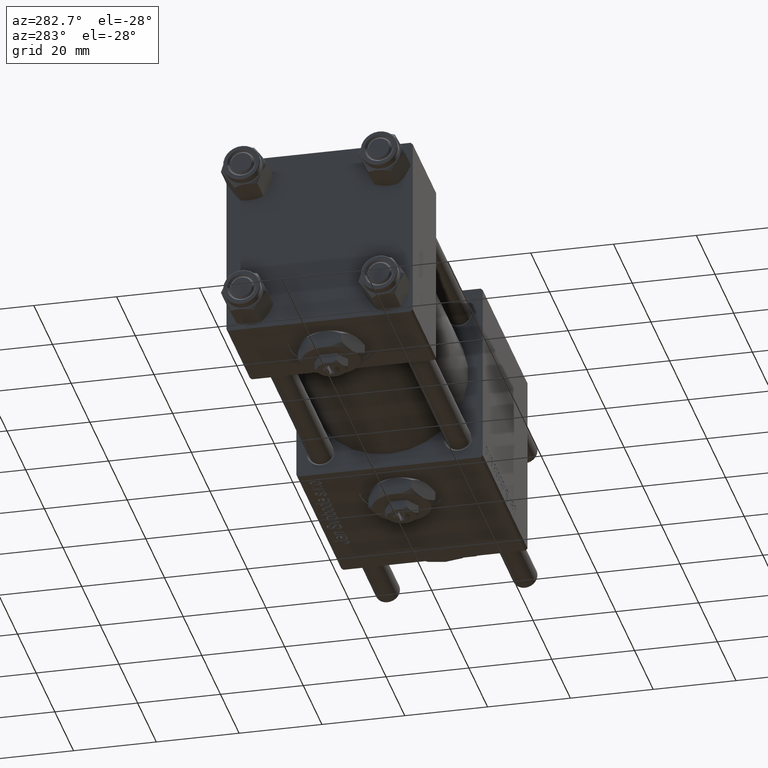
[diagram: clean part render]
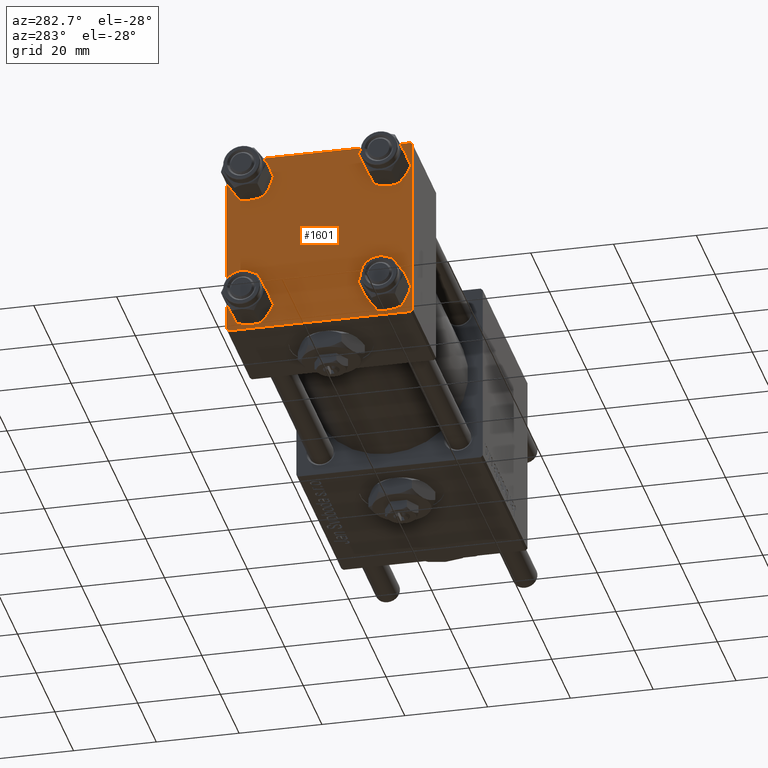
[diagram: same view with one face highlighted and labeled with its STEP entity id]
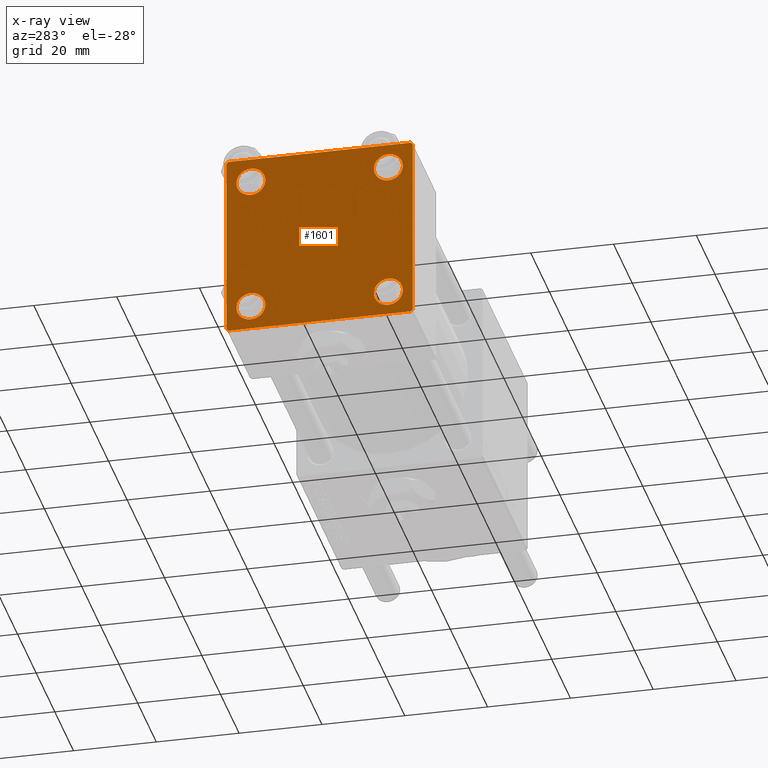
[diagram: x-ray of the same camera — body ghosted, the highlighted face saturated]
A machine part, auxiliary view. The second image highlights one B-rep face of the part: STEP entity #1601.
The next image is the same camera in x-ray: the body ghosted, the highlighted face saturated — about 0% of this face is hidden behind the body in this view.
In plain terms, the highlighted planar face has unit normal (-1, 0, 0).
Its self-contained STEP definition (entity closure, byte-faithful):
#1135 = AXIS2_PLACEMENT_3D ( 'NONE', #48880, #39081, #35202 ) ;
#1141 = CIRCLE ( 'NONE', #46794, 3.499999999999996003 ) ;
#1464 = DIRECTION ( 'NONE',  ( -0.000000000000000000, 0.7071067811865525687, 0.7071067811865425767 ) ) ;
#1508 = CARTESIAN_POINT ( 'NONE',  ( 0.000000000000000000, 22.50000000000000000, -22.49999999999999645 ) ) ;
#1545 = CIRCLE ( 'NONE', #27195, 3.499999999999996003 ) ;
#1601 = ADVANCED_FACE ( 'NONE', ( #17335, #19852, #7306, #29638, #1668 ), #47782, .T. ) ;
#1668 = FACE_OUTER_BOUND ( 'NONE', #4148, .T. ) ;
#1884 = ORIENTED_EDGE ( 'NONE', *, *, #33236, .T. ) ;
#2257 = DIRECTION ( 'NONE',  ( -0.000000000000000000, 0.000000000000000000, 1.000000000000000000 ) ) ;
#2823 = ORIENTED_EDGE ( 'NONE', *, *, #28135, .T. ) ;
#2888 = VERTEX_POINT ( 'NONE', #6525 ) ;
#3121 = DIRECTION ( 'NONE',  ( 0.000000000000000000, 0.000000000000000000, 1.000000000000000000 ) ) ;
#3407 = DIRECTION ( 'NONE',  ( 1.000000000000000000, -0.000000000000000000, 0.000000000000000000 ) ) ;
#3908 = AXIS2_PLACEMENT_3D ( 'NONE', #21355, #49598, #39496 ) ;
#4135 = EDGE_CURVE ( 'NONE', #6041, #6838, #35354, .T. ) ;
#4148 = EDGE_LOOP ( 'NONE', ( #39156, #28771, #53590, #2823, #38384, #56680, #57951, #54436 ) ) ;
#4218 = CARTESIAN_POINT ( 'NONE',  ( 0.000000000000000000, 16.59999999999999787, 13.10000000000000675 ) ) ;
#4335 = CIRCLE ( 'NONE', #19582, 3.499999999999996003 ) ;
#4678 = EDGE_CURVE ( 'NONE', #39734, #33412, #4335, .T. ) ;
#4876 = CARTESIAN_POINT ( 'NONE',  ( 0.000000000000000000, 22.25000000000014566, -22.24999999999984013 ) ) ;
#4897 = CIRCLE ( 'NONE', #38165, 3.499999999999996003 ) ;
#5193 = VERTEX_POINT ( 'NONE', #4218 ) ;
#5825 = DIRECTION ( 'NONE',  ( 1.000000000000000000, -0.000000000000000000, 0.000000000000000000 ) ) ;
#6041 = VERTEX_POINT ( 'NONE', #13468 ) ;
#6525 = CARTESIAN_POINT ( 'NONE',  ( 0.000000000000000000, 22.50000000000000000, -21.99999999999996803 ) ) ;
#6838 = VERTEX_POINT ( 'NONE', #55417 ) ;
#6928 = ORIENTED_EDGE ( 'NONE', *, *, #26112, .T. ) ;
#7306 = FACE_BOUND ( 'NONE', #22450, .T. ) ;
#7323 = VECTOR ( 'NONE', #1464, 999.9999999999998863 ) ;
#8237 = EDGE_LOOP ( 'NONE', ( #12280, #15169 ) ) ;
#8677 = VERTEX_POINT ( 'NONE', #42452 ) ;
#8732 = ORIENTED_EDGE ( 'NONE', *, *, #31197, .T. ) ;
#8794 = DIRECTION ( 'NONE',  ( 0.000000000000000000, 0.000000000000000000, 1.000000000000000000 ) ) ;
#9289 = CARTESIAN_POINT ( 'NONE',  ( 0.000000000000000000, -16.59999999999999076, 13.10000000000001030 ) ) ;
#9610 = CIRCLE ( 'NONE', #3908, 3.499999999999996003 ) ;
#10488 = EDGE_CURVE ( 'NONE', #46363, #41481, #21653, .T. ) ;
#11178 = CARTESIAN_POINT ( 'NONE',  ( 0.000000000000000000, -16.59999999999999076, -16.60000000000000853 ) ) ;
#11443 = LINE ( 'NONE', #33754, #31598 ) ;
#12126 = VERTEX_POINT ( 'NONE', #49197 ) ;
#12133 = AXIS2_PLACEMENT_3D ( 'NONE', #28553, #38064, #55329 ) ;
#12164 = CARTESIAN_POINT ( 'NONE',  ( 0.000000000000000000, 22.24999999999999645, 22.24999999999999645 ) ) ;
#12280 = ORIENTED_EDGE ( 'NONE', *, *, #10488, .T. ) ;
#12559 = CARTESIAN_POINT ( 'NONE',  ( 0.000000000000000000, -16.59999999999999076, 16.60000000000000853 ) ) ;
#12865 = ORIENTED_EDGE ( 'NONE', *, *, #4678, .T. ) ;
#13468 = CARTESIAN_POINT ( 'NONE',  ( 0.000000000000000000, 21.99999999999999289, 22.50000000000000355 ) ) ;
#13808 = LINE ( 'NONE', #4876, #23486 ) ;
#14179 = CARTESIAN_POINT ( 'NONE',  ( 0.000000000000000000, -22.50000000000000000, -21.99999999999997158 ) ) ;
#14235 = CARTESIAN_POINT ( 'NONE',  ( 0.000000000000000000, 16.59999999999999787, 20.10000000000000142 ) ) ;
#14864 = VECTOR ( 'NONE', #33160, 1000.000000000000000 ) ;
#15169 = ORIENTED_EDGE ( 'NONE', *, *, #28172, .T. ) ;
#15401 = CIRCLE ( 'NONE', #56252, 3.499999999999996003 ) ;
#16508 = CARTESIAN_POINT ( 'NONE',  ( 0.000000000000000000, -16.59999999999999076, 16.60000000000000853 ) ) ;
#17335 = FACE_BOUND ( 'NONE', #32379, .T. ) ;
#18631 = CARTESIAN_POINT ( 'NONE',  ( 0.000000000000000000, 16.59999999999999787, -16.60000000000000497 ) ) ;
#19283 = CIRCLE ( 'NONE', #1135, 3.499999999999996003 ) ;
#19582 = AXIS2_PLACEMENT_3D ( 'NONE', #49236, #3407, #3121 ) ;
#19765 = CARTESIAN_POINT ( 'NONE',  ( 0.000000000000000000, 22.50000000000000000, 22.50000000000000355 ) ) ;
#19852 = FACE_BOUND ( 'NONE', #8237, .T. ) ;
#21268 = DIRECTION ( 'NONE',  ( 0.000000000000000000, 0.000000000000000000, 1.000000000000000000 ) ) ;
#21355 = CARTESIAN_POINT ( 'NONE',  ( 0.000000000000000000, 16.59999999999999787, 16.60000000000000497 ) ) ;
#21653 = CIRCLE ( 'NONE', #12133, 3.499999999999996003 ) ;
#21813 = ORIENTED_EDGE ( 'NONE', *, *, #28268, .T. ) ;
#22091 = CARTESIAN_POINT ( 'NONE',  ( 0.000000000000000000, -22.50000000000000000, 22.00000000000000000 ) ) ;
#22450 = EDGE_LOOP ( 'NONE', ( #12865, #8732 ) ) ;
#22699 = CARTESIAN_POINT ( 'NONE',  ( 0.000000000000000000, 16.59999999999999787, -13.10000000000000675 ) ) ;
#23486 = VECTOR ( 'NONE', #27489, 1000.000000000000000 ) ;
#24110 = CARTESIAN_POINT ( 'NONE',  ( -0.000000000000000000, -22.24999999999984013, 22.25000000000015277 ) ) ;
#24582 = LINE ( 'NONE', #38247, #30585 ) ;
#25972 = VERTEX_POINT ( 'NONE', #36571 ) ;
#26112 = EDGE_CURVE ( 'NONE', #37170, #5193, #9610, .T. ) ;
#26724 = VERTEX_POINT ( 'NONE', #22091 ) ;
#27142 = CARTESIAN_POINT ( 'NONE',  ( 0.000000000000000000, 16.59999999999999787, -20.10000000000000142 ) ) ;
#27195 = AXIS2_PLACEMENT_3D ( 'NONE', #12559, #36350, #30985 ) ;
#27245 = DIRECTION ( 'NONE',  ( 1.000000000000000000, -0.000000000000000000, 0.000000000000000000 ) ) ;
#27489 = DIRECTION ( 'NONE',  ( -0.000000000000000000, -0.7071067811865426878, -0.7071067811865524577 ) ) ;
#28135 = EDGE_CURVE ( 'NONE', #56934, #50850, #24582, .T. ) ;
#28172 = EDGE_CURVE ( 'NONE', #41481, #46363, #15401, .T. ) ;
#28268 = EDGE_CURVE ( 'NONE', #33350, #8677, #1141, .T. ) ;
#28385 = LINE ( 'NONE', #19765, #58622 ) ;
#28553 = CARTESIAN_POINT ( 'NONE',  ( 0.000000000000000000, -16.59999999999999076, -16.60000000000000853 ) ) ;
#28771 = ORIENTED_EDGE ( 'NONE', *, *, #48934, .T. ) ;
#29638 = FACE_BOUND ( 'NONE', #58092, .T. ) ;
#29653 = EDGE_CURVE ( 'NONE', #12126, #56934, #50928, .T. ) ;
#30585 = VECTOR ( 'NONE', #56390, 1000.000000000000000 ) ;
#30593 = DIRECTION ( 'NONE',  ( 0.000000000000000000, 0.7071067811865474617, -0.7071067811865474617 ) ) ;
#30985 = DIRECTION ( 'NONE',  ( 0.000000000000000000, 0.000000000000000000, 1.000000000000000000 ) ) ;
#31197 = EDGE_CURVE ( 'NONE', #33412, #39734, #4897, .T. ) ;
#31598 = VECTOR ( 'NONE', #34051, 1000.000000000000000 ) ;
#32379 = EDGE_LOOP ( 'NONE', ( #36508, #21813 ) ) ;
#33160 = DIRECTION ( 'NONE',  ( 0.000000000000000000, 0.000000000000000000, -1.000000000000000000 ) ) ;
#33236 = EDGE_CURVE ( 'NONE', #5193, #37170, #19283, .T. ) ;
#33350 = VERTEX_POINT ( 'NONE', #9289 ) ;
#33412 = VERTEX_POINT ( 'NONE', #27142 ) ;
#33696 = AXIS2_PLACEMENT_3D ( 'NONE', #43034, #43617, #2257 ) ;
#33754 = CARTESIAN_POINT ( 'NONE',  ( 0.000000000000000000, 22.50000000000000000, 22.50000000000000355 ) ) ;
#33883 = CARTESIAN_POINT ( 'NONE',  ( 0.000000000000000000, -16.59999999999999076, -13.10000000000001030 ) ) ;
#34051 = DIRECTION ( 'NONE',  ( 0.000000000000000000, -1.000000000000000000, -7.709882115452476934E-17 ) ) ;
#34150 = EDGE_CURVE ( 'NONE', #6041, #25972, #11443, .T. ) ;
#35202 = DIRECTION ( 'NONE',  ( 0.000000000000000000, 0.000000000000000000, 1.000000000000000000 ) ) ;
#35283 = CARTESIAN_POINT ( 'NONE',  ( 0.000000000000000000, -21.99999999999997158, -22.50000000000000711 ) ) ;
#35354 = LINE ( 'NONE', #12164, #36681 ) ;
#36350 = DIRECTION ( 'NONE',  ( 1.000000000000000000, -0.000000000000000000, 0.000000000000000000 ) ) ;
#36508 = ORIENTED_EDGE ( 'NONE', *, *, #51368, .T. ) ;
#36571 = CARTESIAN_POINT ( 'NONE',  ( 0.000000000000000000, -21.99999999999997868, 22.50000000000000000 ) ) ;
#36681 = VECTOR ( 'NONE', #30593, 1000.000000000000114 ) ;
#37170 = VERTEX_POINT ( 'NONE', #14235 ) ;
#37532 = DIRECTION ( 'NONE',  ( 0.000000000000000000, -1.000000000000000000, -2.312964634635742957E-16 ) ) ;
#38064 = DIRECTION ( 'NONE',  ( 1.000000000000000000, -0.000000000000000000, 0.000000000000000000 ) ) ;
#38165 = AXIS2_PLACEMENT_3D ( 'NONE', #18631, #27245, #8794 ) ;
#38247 = CARTESIAN_POINT ( 'NONE',  ( 0.000000000000000000, -22.25000000000014566, -22.24999999999984013 ) ) ;
#38384 = ORIENTED_EDGE ( 'NONE', *, *, #45773, .F. ) ;
#39081 = DIRECTION ( 'NONE',  ( 1.000000000000000000, -0.000000000000000000, 0.000000000000000000 ) ) ;
#39156 = ORIENTED_EDGE ( 'NONE', *, *, #49014, .T. ) ;
#39496 = DIRECTION ( 'NONE',  ( 0.000000000000000000, 0.000000000000000000, 1.000000000000000000 ) ) ;
#39734 = VERTEX_POINT ( 'NONE', #22699 ) ;
#41355 = LINE ( 'NONE', #24110, #7323 ) ;
#41481 = VERTEX_POINT ( 'NONE', #47013 ) ;
#42452 = CARTESIAN_POINT ( 'NONE',  ( 0.000000000000000000, -16.59999999999999076, 20.10000000000000853 ) ) ;
#43034 = CARTESIAN_POINT ( 'NONE',  ( 0.000000000000000000, 0.000000000000000000, 0.000000000000000000 ) ) ;
#43617 = DIRECTION ( 'NONE',  ( -1.000000000000000000, 0.000000000000000000, -0.000000000000000000 ) ) ;
#43936 = VECTOR ( 'NONE', #37532, 1000.000000000000000 ) ;
#45773 = EDGE_CURVE ( 'NONE', #26724, #50850, #52195, .T. ) ;
#46363 = VERTEX_POINT ( 'NONE', #33883 ) ;
#46534 = DIRECTION ( 'NONE',  ( 0.000000000000000000, 0.000000000000000000, -1.000000000000000000 ) ) ;
#46794 = AXIS2_PLACEMENT_3D ( 'NONE', #16508, #48917, #21268 ) ;
#47013 = CARTESIAN_POINT ( 'NONE',  ( 0.000000000000000000, -16.59999999999999076, -20.10000000000000497 ) ) ;
#47463 = DIRECTION ( 'NONE',  ( 0.000000000000000000, 0.000000000000000000, 1.000000000000000000 ) ) ;
#47782 = PLANE ( 'NONE',  #33696 ) ;
#48880 = CARTESIAN_POINT ( 'NONE',  ( 0.000000000000000000, 16.59999999999999787, 16.60000000000000497 ) ) ;
#48917 = DIRECTION ( 'NONE',  ( 1.000000000000000000, -0.000000000000000000, 0.000000000000000000 ) ) ;
#48934 = EDGE_CURVE ( 'NONE', #2888, #12126, #13808, .T. ) ;
#49014 = EDGE_CURVE ( 'NONE', #6838, #2888, #28385, .T. ) ;
#49197 = CARTESIAN_POINT ( 'NONE',  ( 0.000000000000000000, 21.99999999999999289, -22.49999999999999645 ) ) ;
#49236 = CARTESIAN_POINT ( 'NONE',  ( 0.000000000000000000, 16.59999999999999787, -16.60000000000000497 ) ) ;
#49598 = DIRECTION ( 'NONE',  ( 1.000000000000000000, -0.000000000000000000, 0.000000000000000000 ) ) ;
#50850 = VERTEX_POINT ( 'NONE', #14179 ) ;
#50928 = LINE ( 'NONE', #1508, #43936 ) ;
#51368 = EDGE_CURVE ( 'NONE', #8677, #33350, #1545, .T. ) ;
#51901 = CARTESIAN_POINT ( 'NONE',  ( 0.000000000000000000, -22.50000000000000000, 22.50000000000000000 ) ) ;
#52195 = LINE ( 'NONE', #51901, #14864 ) ;
#53368 = EDGE_CURVE ( 'NONE', #26724, #25972, #41355, .T. ) ;
#53590 = ORIENTED_EDGE ( 'NONE', *, *, #29653, .T. ) ;
#54436 = ORIENTED_EDGE ( 'NONE', *, *, #4135, .T. ) ;
#55329 = DIRECTION ( 'NONE',  ( 0.000000000000000000, 0.000000000000000000, 1.000000000000000000 ) ) ;
#55417 = CARTESIAN_POINT ( 'NONE',  ( 0.000000000000000000, 22.50000000000000000, 21.99999999999999645 ) ) ;
#56252 = AXIS2_PLACEMENT_3D ( 'NONE', #11178, #5825, #47463 ) ;
#56390 = DIRECTION ( 'NONE',  ( 0.000000000000000000, -0.7071067811865426878, 0.7071067811865524577 ) ) ;
#56680 = ORIENTED_EDGE ( 'NONE', *, *, #53368, .T. ) ;
#56934 = VERTEX_POINT ( 'NONE', #35283 ) ;
#57951 = ORIENTED_EDGE ( 'NONE', *, *, #34150, .F. ) ;
#58092 = EDGE_LOOP ( 'NONE', ( #6928, #1884 ) ) ;
#58622 = VECTOR ( 'NONE', #46534, 1000.000000000000000 ) ;